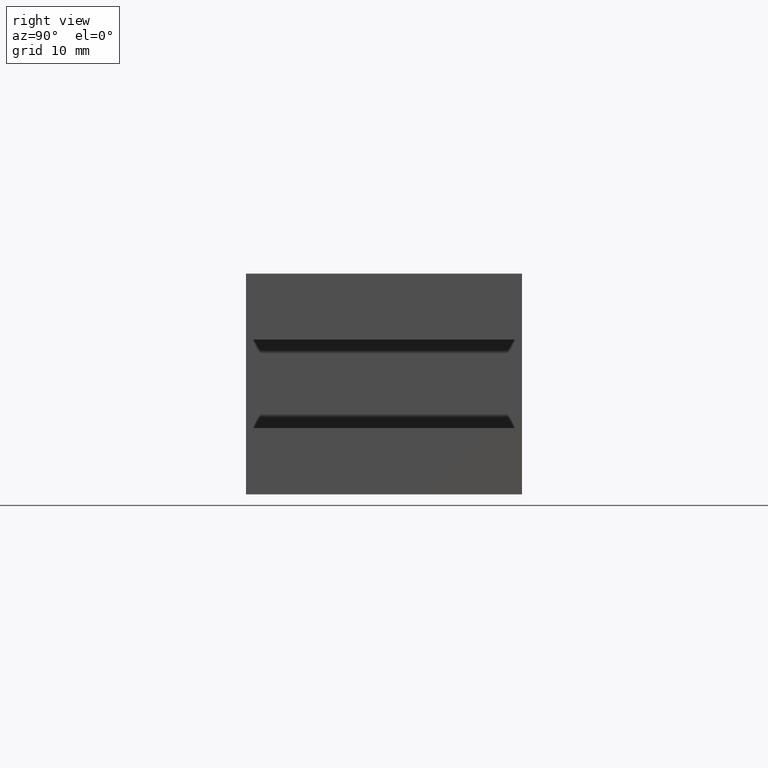
[diagram: clean part render]
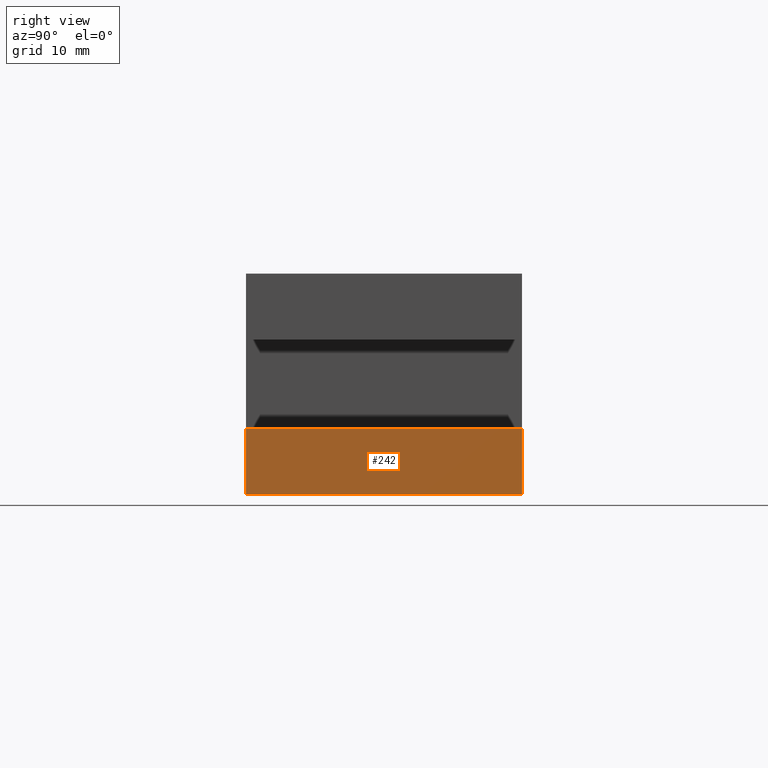
[diagram: same view with one face highlighted and labeled with its STEP entity id]
A machine part, right view. The second image highlights one B-rep face of the part: STEP entity #242.
In plain terms, the highlighted planar face has unit normal (1, 0, 0).
Its self-contained STEP definition (entity closure, byte-faithful):
#120=CARTESIAN_POINT('',(45.825283991875160,-11.961124341222462,5.999999999999997));
#121=VERTEX_POINT('',#120);
#128=CARTESIAN_POINT('',(45.825283991875160,13.038875658777529,5.999999999999997));
#129=VERTEX_POINT('',#128);
#130=CARTESIAN_POINT('',(45.825283991875160,13.038875658777529,5.999999999999997));
#131=DIRECTION('',(0.0,-1.0,0.0));
#132=VECTOR('',#131,24.999999999999993);
#133=LINE('',#130,#132);
#134=EDGE_CURVE('',#129,#121,#133,.T.);
#178=CARTESIAN_POINT('',(45.825283991875168,-11.961124341222465,0.0));
#179=VERTEX_POINT('',#178);
#186=CARTESIAN_POINT('',(45.825283991875168,-11.961124341222465,0.0));
#187=DIRECTION('',(0.0,0.0,1.0));
#188=VECTOR('',#187,5.999999999999997);
#189=LINE('',#186,#188);
#190=EDGE_CURVE('',#179,#121,#189,.T.);
#219=CARTESIAN_POINT('',(45.825283991875160,13.038875658777531,0.0));
#220=DIRECTION('',(1.0,0.0,0.0));
#221=DIRECTION('',(0.0,0.0,-1.0));
#222=AXIS2_PLACEMENT_3D('',#219,#220,#221);
#223=PLANE('',#222);
#224=ORIENTED_EDGE('',*,*,#134,.T.);
#225=ORIENTED_EDGE('',*,*,#190,.F.);
#226=CARTESIAN_POINT('',(45.825283991875160,13.038875658777531,0.0));
#227=VERTEX_POINT('',#226);
#228=CARTESIAN_POINT('',(45.825283991875168,-11.961124341222465,0.0));
#229=DIRECTION('',(0.0,1.0,0.0));
#230=VECTOR('',#229,24.999999999999996);
#231=LINE('',#228,#230);
#232=EDGE_CURVE('',#179,#227,#231,.T.);
#233=ORIENTED_EDGE('',*,*,#232,.T.);
#234=CARTESIAN_POINT('',(45.825283991875160,13.038875658777531,0.0));
#235=DIRECTION('',(0.0,0.0,1.0));
#236=VECTOR('',#235,5.999999999999997);
#237=LINE('',#234,#236);
#238=EDGE_CURVE('',#227,#129,#237,.T.);
#239=ORIENTED_EDGE('',*,*,#238,.T.);
#240=EDGE_LOOP('',(#224,#225,#233,#239));
#241=FACE_OUTER_BOUND('',#240,.T.);
#242=ADVANCED_FACE('',(#241),#223,.T.);